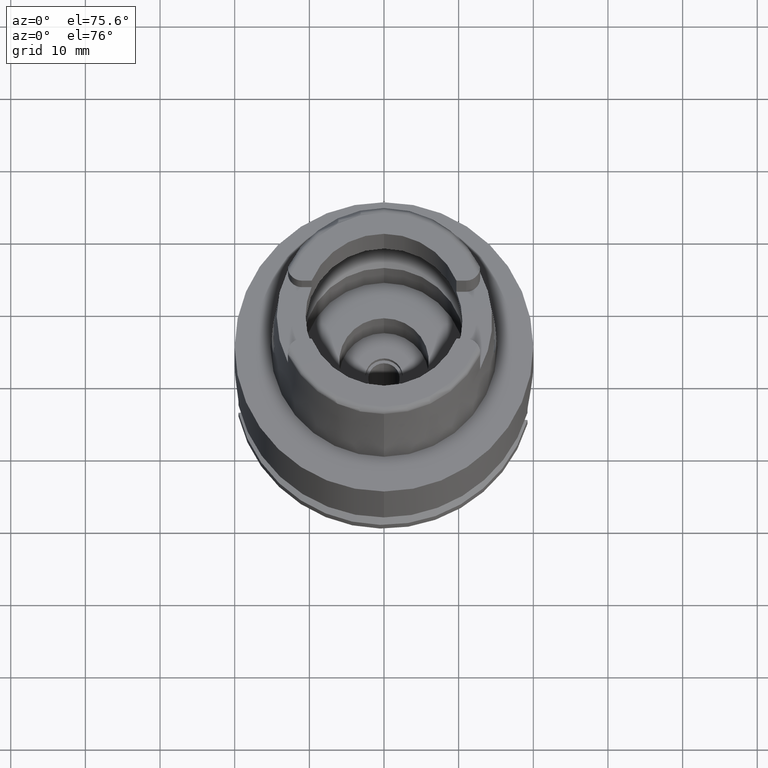
[diagram: clean part render]
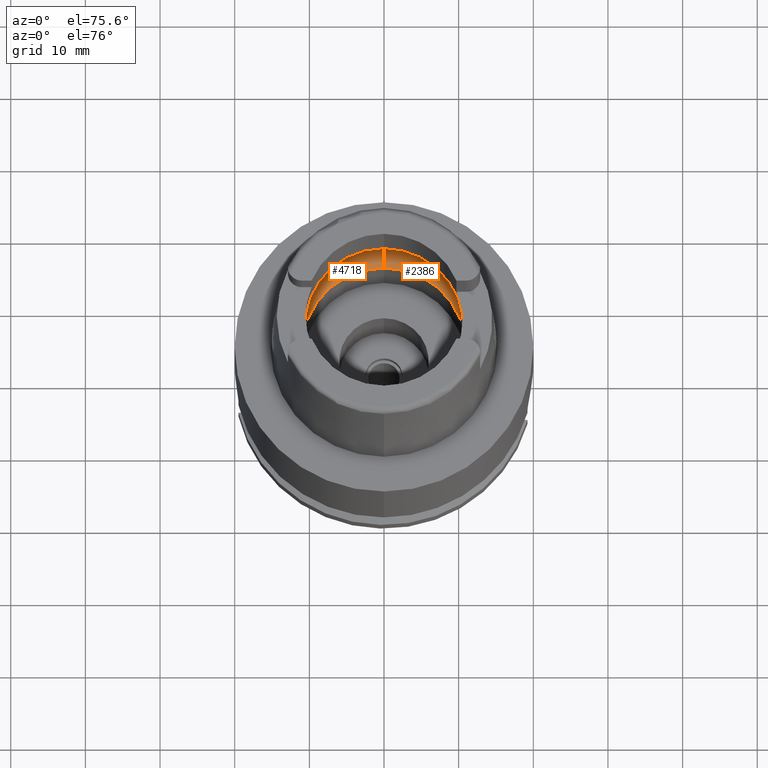
[diagram: same view with one multi-face feature highlighted, each face labeled with its STEP entity id]
A machine part, auxiliary view. The highlighted faces form ONE feature: a constant-radius fillet chain: 2 tangent blend faces with common blend radius 5 mm. The faces share edges in the B-rep.
Their STEP definitions:
[1] entity #4718 (Torus):
#36 = AXIS2_PLACEMENT_3D ( 'NONE', #4328, #3968, #5199 ) ;
#299 = CARTESIAN_POINT ( 'NONE',  ( -12.70998420979999999, 1.009356917307999923, 3.933312163512999504 ) ) ;
#348 = CARTESIAN_POINT ( 'NONE',  ( -12.74221165319000093, 0.3492611227261000484, 3.717726340176000122 ) ) ;
#359 = CARTESIAN_POINT ( 'NONE',  ( -12.70998420979999999, -1.009356917307999923, 3.933312163512999504 ) ) ;
#451 = CARTESIAN_POINT ( 'NONE',  ( -12.74455357708000136, 0.0000000000000000000, 3.700000000000000178 ) ) ;
#514 = ORIENTED_EDGE ( 'NONE', *, *, #1897, .F. ) ;
#517 = DIRECTION ( 'NONE',  ( -1.000000000000000000, 0.0000000000000000000, 0.0000000000000000000 ) ) ;
#619 = AXIS2_PLACEMENT_3D ( 'NONE', #1951, #3527, #3155 ) ;
#779 = ORIENTED_EDGE ( 'NONE', *, *, #4725, .T. ) ;
#987 = CARTESIAN_POINT ( 'NONE',  ( -12.70998420979999999, 1.009356917307999923, 3.933312163512999504 ) ) ;
#1080 = VERTEX_POINT ( 'NONE', #359 ) ;
#1188 = CARTESIAN_POINT ( 'NONE',  ( -12.74455357708000136, 0.1165089420520999813, 3.700000000000000178 ) ) ;
#1195 = CARTESIAN_POINT ( 'NONE',  ( 0.0000000000000000000, 0.0000000000000000000, 3.933312163512999504 ) ) ;
#1241 = CARTESIAN_POINT ( 'NONE',  ( -12.70998420979999999, -1.009356917307999923, 3.933312163512999504 ) ) ;
#1295 = AXIS2_PLACEMENT_3D ( 'NONE', #5188, #1508, #3927 ) ;
#1508 = DIRECTION ( 'NONE',  ( 1.000000000000000000, 0.0000000000000000000, 0.0000000000000000000 ) ) ;
#1588 = EDGE_CURVE ( 'NONE', #3890, #3657, #3529, .T. ) ;
#1739 = CARTESIAN_POINT ( 'NONE',  ( -12.73125906335000046, -0.6899166332000999935, 3.796695391513999596 ) ) ;
#1747 = CARTESIAN_POINT ( 'NONE',  ( 0.0000000000000000000, 12.75000000000000000, 3.933312163512999504 ) ) ;
#1855 = EDGE_CURVE ( 'NONE', #2436, #3890, #4180, .T. ) ;
#1897 = EDGE_CURVE ( 'NONE', #1080, #2436, #4493, .T. ) ;
#1932 = CARTESIAN_POINT ( 'NONE',  ( 0.0000000000000000000, 0.0000000000000000000, 0.05033650044220000508 ) ) ;
#1951 = CARTESIAN_POINT ( 'NONE',  ( 0.0000000000000000000, 0.0000000000000000000, 3.933312163512999504 ) ) ;
#2047 = CIRCLE ( 'NONE', #4856, 5.000000000000000888 ) ;
#2270 = EDGE_CURVE ( 'NONE', #2552, #1080, #3444, .T. ) ;
#2344 = DIRECTION ( 'NONE',  ( 0.0000000000000000000, 0.0000000000000000000, -1.000000000000000000 ) ) ;
#2357 = ORIENTED_EDGE ( 'NONE', *, *, #2451, .F. ) ;
#2394 = CARTESIAN_POINT ( 'NONE',  ( -12.71822751322999956, 0.9055559183387998923, 3.882616429747999920 ) ) ;
#2436 = VERTEX_POINT ( 'NONE', #4481 ) ;
#2451 = EDGE_CURVE ( 'NONE', #5023, #2994, #3787, .T. ) ;
#2512 = ORIENTED_EDGE ( 'NONE', *, *, #3837, .F. ) ;
#2552 = VERTEX_POINT ( 'NONE', #5331 ) ;
#2626 = DIRECTION ( 'NONE',  ( 0.0000000000000000000, -0.6299999999999791322, -0.7765951326141738997 ) ) ;
#2962 = TOROIDAL_SURFACE ( 'NONE', #619, 7.750000000000000000, 5.000000000000000000 ) ;
#2994 = VERTEX_POINT ( 'NONE', #4887 ) ;
#3035 = CARTESIAN_POINT ( 'NONE',  ( 0.0000000000000000000, -7.750000000000000000, 3.933312163512999504 ) ) ;
#3101 = ORIENTED_EDGE ( 'NONE', *, *, #1855, .F. ) ;
#3155 = DIRECTION ( 'NONE',  ( 0.0000000000000000000, 1.000000000000000000, 0.0000000000000000000 ) ) ;
#3246 = DIRECTION ( 'NONE',  ( 0.0000000000000000000, 1.000000000000000000, 0.0000000000000000000 ) ) ;
#3250 = CARTESIAN_POINT ( 'NONE',  ( -12.73125911061000082, 0.6899137000249000451, 3.796695002014000231 ) ) ;
#3351 = AXIS2_PLACEMENT_3D ( 'NONE', #1932, #3719, #3246 ) ;
#3444 = CIRCLE ( 'NONE', #36, 12.75000000000000000 ) ;
#3527 = DIRECTION ( 'NONE',  ( 0.0000000000000000000, 0.0000000000000000000, 1.000000000000000000 ) ) ;
#3529 = CIRCLE ( 'NONE', #5087, 12.75000000000000533 ) ;
#3657 = VERTEX_POINT ( 'NONE', #1747 ) ;
#3680 = CIRCLE ( 'NONE', #1295, 5.000000000000000888 ) ;
#3719 = DIRECTION ( 'NONE',  ( 0.0000000000000000000, 0.0000000000000000000, 1.000000000000000000 ) ) ;
#3787 = CIRCLE ( 'NONE', #3351, 10.90000000000000036 ) ;
#3827 = CARTESIAN_POINT ( 'NONE',  ( -12.71822741893999975, -0.9055571055671000069, 3.882617009583000378 ) ) ;
#3830 = EDGE_LOOP ( 'NONE', ( #4271, #2512, #2357, #779, #4784, #3101, #514 ) ) ;
#3837 = EDGE_CURVE ( 'NONE', #2994, #2552, #2047, .T. ) ;
#3890 = VERTEX_POINT ( 'NONE', #987 ) ;
#3927 = DIRECTION ( 'NONE',  ( 0.0000000000000000000, 0.6299999999999791322, -0.7765951326141738997 ) ) ;
#3968 = DIRECTION ( 'NONE',  ( 0.0000000000000000000, 0.0000000000000000000, -1.000000000000000000 ) ) ;
#4034 = DIRECTION ( 'NONE',  ( -0.9968615066513395462, 0.07916524841634305087, 0.0000000000000000000 ) ) ;
#4083 = CARTESIAN_POINT ( 'NONE',  ( -12.74455357708000136, 0.0000000000000000000, 3.700000000000000178 ) ) ;
#4180 = B_SPLINE_CURVE_WITH_KNOTS ( 'NONE', 3,
 ( #4083, #1188, #348, #3250, #2394, #299 ),
 .UNSPECIFIED., .F., .F.,
 ( 4, 1, 1, 4 ),
 ( 0.0000000000000000000, 0.3333333333333000081, 0.6666666666667000474, 1.000000000000000000 ),
 .UNSPECIFIED. ) ;
#4189 = CARTESIAN_POINT ( 'NONE',  ( -12.74455357708000136, -0.1165038350575000048, 3.700000000000000178 ) ) ;
#4271 = ORIENTED_EDGE ( 'NONE', *, *, #2270, .F. ) ;
#4328 = CARTESIAN_POINT ( 'NONE',  ( 0.0000000000000000000, 0.0000000000000000000, 3.933312163512999504 ) ) ;
#4429 = CARTESIAN_POINT ( 'NONE',  ( 0.0000000000000000000, 10.90000000000000036, 0.05033650044220000508 ) ) ;
#4481 = CARTESIAN_POINT ( 'NONE',  ( -12.74455357708000136, 0.0000000000000000000, 3.700000000000000178 ) ) ;
#4493 = B_SPLINE_CURVE_WITH_KNOTS ( 'NONE', 3,
 ( #1241, #3827, #1739, #5046, #4189, #451 ),
 .UNSPECIFIED., .F., .F.,
 ( 4, 1, 1, 4 ),
 ( 0.0000000000000000000, 0.3333333333333000081, 0.6666666666667000474, 1.000000000000000000 ),
 .UNSPECIFIED. ) ;
#4718 = ADVANCED_FACE ( 'NONE', ( #4780 ), #2962, .F. ) ;
#4725 = EDGE_CURVE ( 'NONE', #5023, #3657, #3680, .T. ) ;
#4780 = FACE_OUTER_BOUND ( 'NONE', #3830, .T. ) ;
#4784 = ORIENTED_EDGE ( 'NONE', *, *, #1588, .F. ) ;
#4856 = AXIS2_PLACEMENT_3D ( 'NONE', #3035, #517, #2626 ) ;
#4887 = CARTESIAN_POINT ( 'NONE',  ( 0.0000000000000000000, -10.90000000000000036, 0.05033650044220000508 ) ) ;
#5023 = VERTEX_POINT ( 'NONE', #4429 ) ;
#5046 = CARTESIAN_POINT ( 'NONE',  ( -12.74221193788999962, -0.3492495252689999941, 3.717724247871999843 ) ) ;
#5087 = AXIS2_PLACEMENT_3D ( 'NONE', #1195, #2344, #4034 ) ;
#5188 = CARTESIAN_POINT ( 'NONE',  ( 0.0000000000000000000, 7.750000000000000000, 3.933312163512999504 ) ) ;
#5199 = DIRECTION ( 'NONE',  ( 0.0000000000000000000, -1.000000000000000000, 0.0000000000000000000 ) ) ;
#5331 = CARTESIAN_POINT ( 'NONE',  ( 0.0000000000000000000, -12.75000000000000000, 3.933312163512999504 ) ) ;
[2] entity #2386 (Torus):
#178 = DIRECTION ( 'NONE',  ( 0.9968615066513458745, -0.07916524841626358666, 0.0000000000000000000 ) ) ;
#192 = DIRECTION ( 'NONE',  ( 0.0000000000000000000, 1.000000000000000000, 0.0000000000000000000 ) ) ;
#242 = CARTESIAN_POINT ( 'NONE',  ( 12.74221194226999998, -0.3492494900268000024, 3.717724218997000118 ) ) ;
#289 = CARTESIAN_POINT ( 'NONE',  ( 12.71822740102000004, -0.9055573312621000293, 3.882617119810999995 ) ) ;
#517 = DIRECTION ( 'NONE',  ( -1.000000000000000000, 0.0000000000000000000, 0.0000000000000000000 ) ) ;
#521 = DIRECTION ( 'NONE',  ( 0.0000000000000000000, 1.000000000000000000, 0.0000000000000000000 ) ) ;
#544 = AXIS2_PLACEMENT_3D ( 'NONE', #1178, #5350, #1953 ) ;
#594 = DIRECTION ( 'NONE',  ( 0.0000000000000000000, 0.0000000000000000000, 1.000000000000000000 ) ) ;
#701 = CIRCLE ( 'NONE', #789, 12.75000000000000000 ) ;
#742 = EDGE_CURVE ( 'NONE', #3657, #2169, #701, .T. ) ;
#789 = AXIS2_PLACEMENT_3D ( 'NONE', #3793, #4230, #521 ) ;
#978 = CIRCLE ( 'NONE', #544, 10.90000000000000036 ) ;
#1121 = CARTESIAN_POINT ( 'NONE',  ( 12.74455357708000136, 0.0000000000000000000, 3.700000000000000178 ) ) ;
#1156 = ORIENTED_EDGE ( 'NONE', *, *, #2412, .F. ) ;
#1175 = ORIENTED_EDGE ( 'NONE', *, *, #3837, .T. ) ;
#1178 = CARTESIAN_POINT ( 'NONE',  ( 0.0000000000000000000, 0.0000000000000000000, 0.05033650044220000508 ) ) ;
#1231 = ORIENTED_EDGE ( 'NONE', *, *, #4024, .F. ) ;
#1295 = AXIS2_PLACEMENT_3D ( 'NONE', #5188, #1508, #3927 ) ;
#1508 = DIRECTION ( 'NONE',  ( 1.000000000000000000, 0.0000000000000000000, 0.0000000000000000000 ) ) ;
#1594 = CARTESIAN_POINT ( 'NONE',  ( 12.74455357708000136, -0.1165038148416000091, 3.700000000000000178 ) ) ;
#1602 = ORIENTED_EDGE ( 'NONE', *, *, #4725, .F. ) ;
#1608 = B_SPLINE_CURVE_WITH_KNOTS ( 'NONE', 3,
 ( #2017, #2336, #2043, #4133, #4450, #4533 ),
 .UNSPECIFIED., .F., .F.,
 ( 4, 1, 1, 4 ),
 ( 0.0000000000000000000, 0.3333333333333000081, 0.6666666666667000474, 1.000000000000000000 ),
 .UNSPECIFIED. ) ;
#1747 = CARTESIAN_POINT ( 'NONE',  ( 0.0000000000000000000, 12.75000000000000000, 3.933312163512999504 ) ) ;
#1904 = CARTESIAN_POINT ( 'NONE',  ( 12.70998420979999999, -1.009356917307000057, 3.933312163512999504 ) ) ;
#1953 = DIRECTION ( 'NONE',  ( 0.0000000000000000000, -1.000000000000000000, 0.0000000000000000000 ) ) ;
#2017 = CARTESIAN_POINT ( 'NONE',  ( 12.70998420979999999, 1.009356917307000057, 3.933312163512999504 ) ) ;
#2043 = CARTESIAN_POINT ( 'NONE',  ( 12.73125913416000010, 0.6899131154768000096, 3.796694836489999947 ) ) ;
#2047 = CIRCLE ( 'NONE', #4856, 5.000000000000000888 ) ;
#2169 = VERTEX_POINT ( 'NONE', #5371 ) ;
#2336 = CARTESIAN_POINT ( 'NONE',  ( 12.71822753198000022, 0.9055556822149001261, 3.882616314426999615 ) ) ;
#2386 = ADVANCED_FACE ( 'NONE', ( #3991 ), #3076, .F. ) ;
#2412 = EDGE_CURVE ( 'NONE', #2169, #3805, #1608, .T. ) ;
#2552 = VERTEX_POINT ( 'NONE', #5331 ) ;
#2626 = DIRECTION ( 'NONE',  ( 0.0000000000000000000, -0.6299999999999791322, -0.7765951326141738997 ) ) ;
#2650 = CIRCLE ( 'NONE', #4817, 12.75000000000000178 ) ;
#2885 = EDGE_CURVE ( 'NONE', #2994, #5023, #978, .T. ) ;
#2994 = VERTEX_POINT ( 'NONE', #4887 ) ;
#2998 = EDGE_CURVE ( 'NONE', #3805, #4151, #3712, .T. ) ;
#3035 = CARTESIAN_POINT ( 'NONE',  ( 0.0000000000000000000, -7.750000000000000000, 3.933312163512999504 ) ) ;
#3076 = TOROIDAL_SURFACE ( 'NONE', #3619, 7.750000000000000000, 5.000000000000000000 ) ;
#3619 = AXIS2_PLACEMENT_3D ( 'NONE', #4350, #594, #192 ) ;
#3657 = VERTEX_POINT ( 'NONE', #1747 ) ;
#3680 = CIRCLE ( 'NONE', #1295, 5.000000000000000888 ) ;
#3712 = B_SPLINE_CURVE_WITH_KNOTS ( 'NONE', 3,
 ( #1121, #1594, #242, #4045, #289, #1904 ),
 .UNSPECIFIED., .F., .F.,
 ( 4, 1, 1, 4 ),
 ( 0.0000000000000000000, 0.3333333333333000081, 0.6666666666667000474, 1.000000000000000000 ),
 .UNSPECIFIED. ) ;
#3793 = CARTESIAN_POINT ( 'NONE',  ( 0.0000000000000000000, 0.0000000000000000000, 3.933312163512999504 ) ) ;
#3805 = VERTEX_POINT ( 'NONE', #5337 ) ;
#3837 = EDGE_CURVE ( 'NONE', #2994, #2552, #2047, .T. ) ;
#3851 = EDGE_LOOP ( 'NONE', ( #1156, #5354, #1602, #4876, #1175, #1231, #4432 ) ) ;
#3854 = CARTESIAN_POINT ( 'NONE',  ( 12.70998420979999999, -1.009356917307000057, 3.933312163512999504 ) ) ;
#3927 = DIRECTION ( 'NONE',  ( 0.0000000000000000000, 0.6299999999999791322, -0.7765951326141738997 ) ) ;
#3991 = FACE_OUTER_BOUND ( 'NONE', #3851, .T. ) ;
#4024 = EDGE_CURVE ( 'NONE', #4151, #2552, #2650, .T. ) ;
#4045 = CARTESIAN_POINT ( 'NONE',  ( 12.73125904006000120, -0.6899171919978999146, 3.796695554555000296 ) ) ;
#4133 = CARTESIAN_POINT ( 'NONE',  ( 12.74221164577000209, 0.3492612827266999842, 3.717726391320999912 ) ) ;
#4151 = VERTEX_POINT ( 'NONE', #3854 ) ;
#4230 = DIRECTION ( 'NONE',  ( 0.0000000000000000000, 0.0000000000000000000, -1.000000000000000000 ) ) ;
#4350 = CARTESIAN_POINT ( 'NONE',  ( 0.0000000000000000000, 0.0000000000000000000, 3.933312163512999504 ) ) ;
#4429 = CARTESIAN_POINT ( 'NONE',  ( 0.0000000000000000000, 10.90000000000000036, 0.05033650044220000508 ) ) ;
#4432 = ORIENTED_EDGE ( 'NONE', *, *, #2998, .F. ) ;
#4450 = CARTESIAN_POINT ( 'NONE',  ( 12.74455357708000136, 0.1165090171563999966, 3.700000000000000178 ) ) ;
#4533 = CARTESIAN_POINT ( 'NONE',  ( 12.74455357708000136, 0.0000000000000000000, 3.700000000000000178 ) ) ;
#4685 = CARTESIAN_POINT ( 'NONE',  ( 0.0000000000000000000, 0.0000000000000000000, 3.933312163512999504 ) ) ;
#4725 = EDGE_CURVE ( 'NONE', #5023, #3657, #3680, .T. ) ;
#4817 = AXIS2_PLACEMENT_3D ( 'NONE', #4685, #5120, #178 ) ;
#4856 = AXIS2_PLACEMENT_3D ( 'NONE', #3035, #517, #2626 ) ;
#4876 = ORIENTED_EDGE ( 'NONE', *, *, #2885, .F. ) ;
#4887 = CARTESIAN_POINT ( 'NONE',  ( 0.0000000000000000000, -10.90000000000000036, 0.05033650044220000508 ) ) ;
#5023 = VERTEX_POINT ( 'NONE', #4429 ) ;
#5120 = DIRECTION ( 'NONE',  ( 0.0000000000000000000, 0.0000000000000000000, -1.000000000000000000 ) ) ;
#5188 = CARTESIAN_POINT ( 'NONE',  ( 0.0000000000000000000, 7.750000000000000000, 3.933312163512999504 ) ) ;
#5331 = CARTESIAN_POINT ( 'NONE',  ( 0.0000000000000000000, -12.75000000000000000, 3.933312163512999504 ) ) ;
#5337 = CARTESIAN_POINT ( 'NONE',  ( 12.74455357708000136, 0.0000000000000000000, 3.700000000000000178 ) ) ;
#5350 = DIRECTION ( 'NONE',  ( 0.0000000000000000000, 0.0000000000000000000, 1.000000000000000000 ) ) ;
#5354 = ORIENTED_EDGE ( 'NONE', *, *, #742, .F. ) ;
#5371 = CARTESIAN_POINT ( 'NONE',  ( 12.70998420979999999, 1.009356917307000057, 3.933312163512999504 ) ) ;